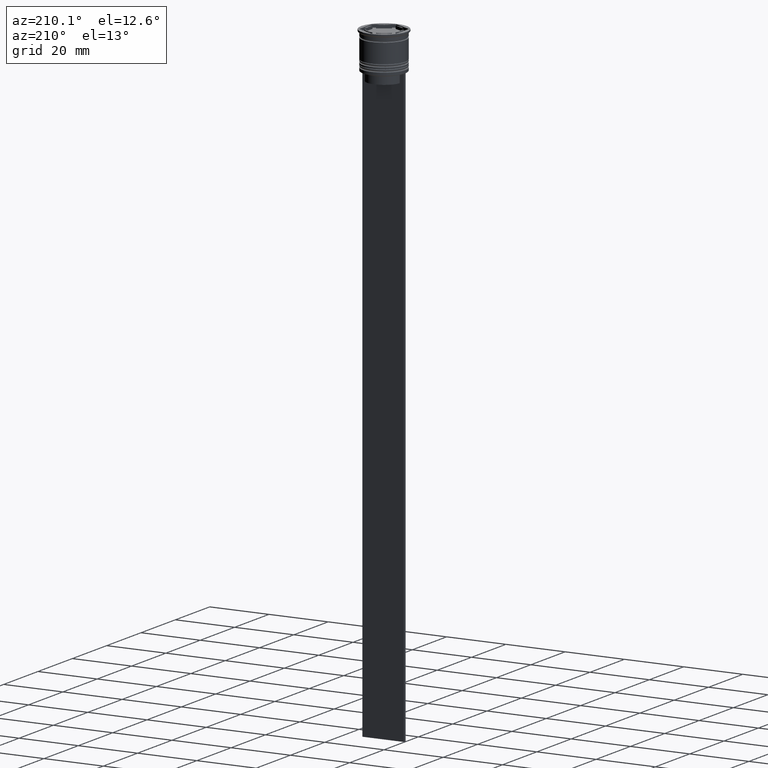
[diagram: clean part render]
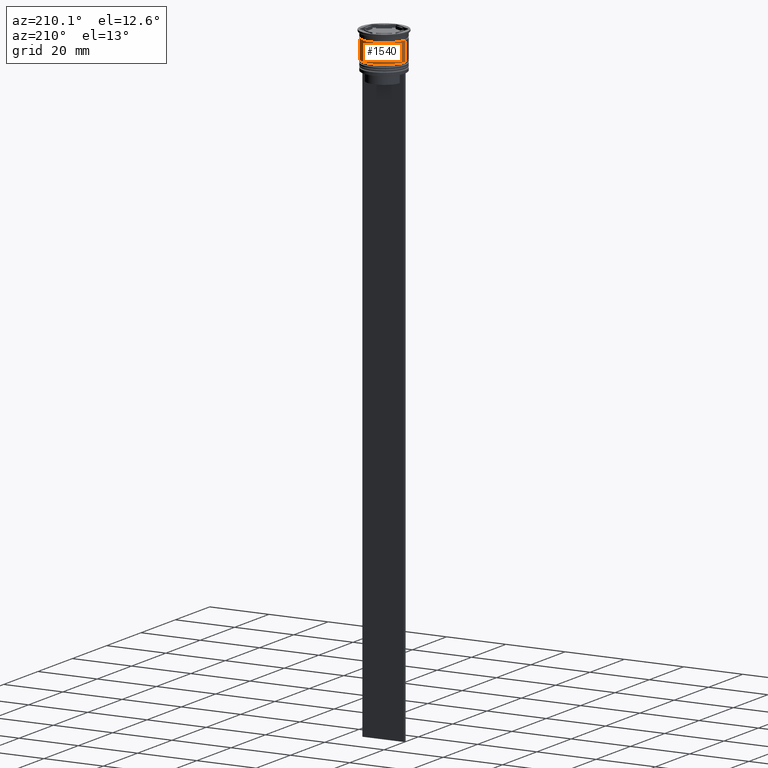
[diagram: same view with one face highlighted and labeled with its STEP entity id]
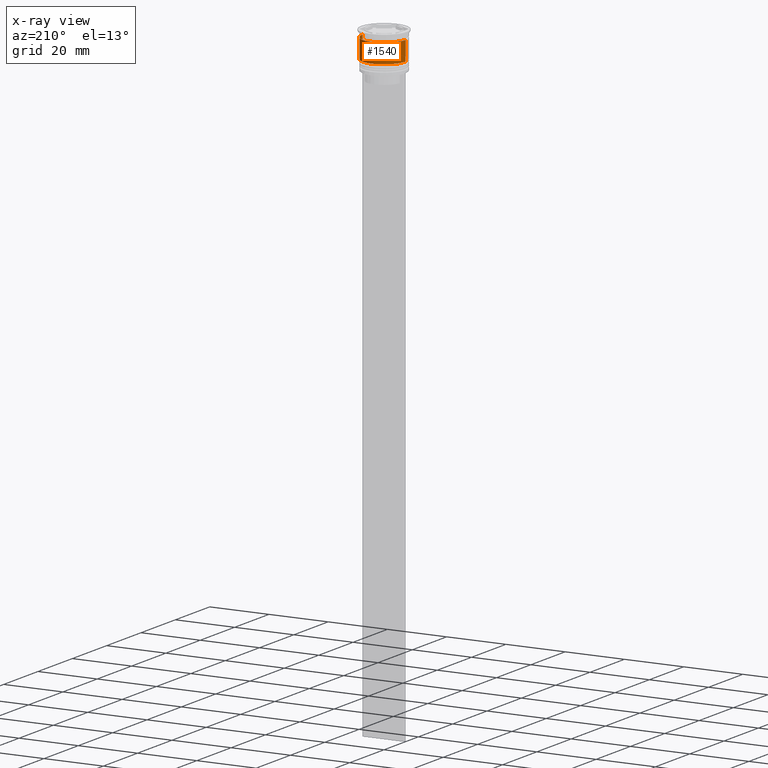
[diagram: x-ray of the same camera — body ghosted, the highlighted face saturated]
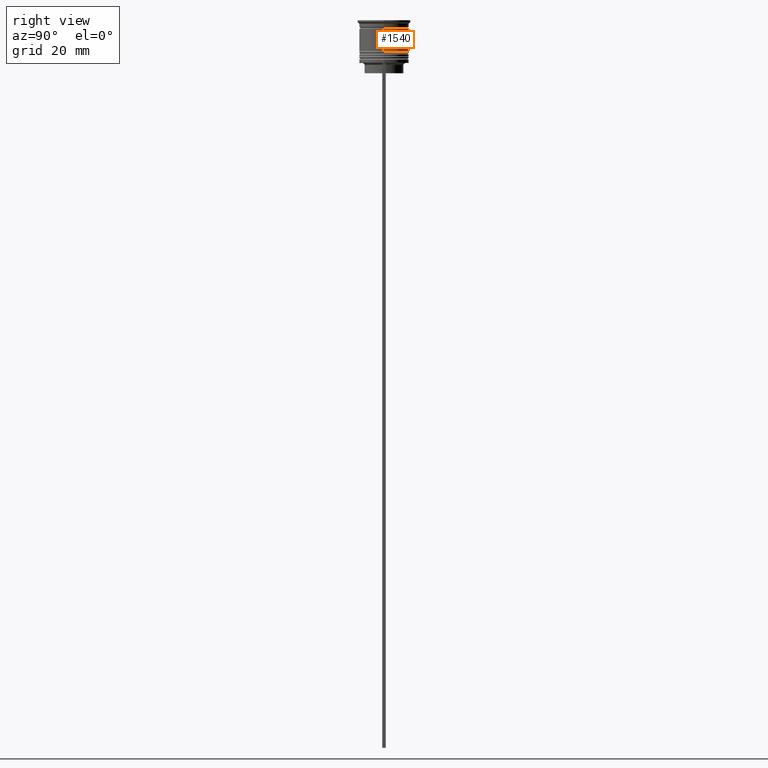
[diagram: same view with one face highlighted and labeled with its STEP entity id]
A machine part, auxiliary view. The second image highlights one B-rep face of the part: STEP entity #1540.
The next image is the same camera in x-ray: the body ghosted, the highlighted face saturated — about 0% of this face is hidden behind the body in this view.
A second angle (right view) of the same face is appended — the face is thin or edge-on in the first view.
In plain terms, the highlighted cylindrical surface (edge-blend (fillet) strip) has radius 7.25 mm, axis along (-0, -0, 1).
Its self-contained STEP definition (entity closure, byte-faithful):
#12 = VERTEX_POINT ( 'NONE', #233 ) ;
#99 = CARTESIAN_POINT ( 'NONE',  ( 0.000000000000000000, 0.000000000000000000, -2.500000000000000444 ) ) ;
#162 = AXIS2_PLACEMENT_3D ( 'NONE', #1611, #2194, #375 ) ;
#186 = ORIENTED_EDGE ( 'NONE', *, *, #2028, .T. ) ;
#205 = CARTESIAN_POINT ( 'NONE',  ( 7.249999999999999112, 0.000000000000000000, 0.000000000000000000 ) ) ;
#233 = CARTESIAN_POINT ( 'NONE',  ( 7.250000000000000888, 0.000000000000000000, -9.000000000000001776 ) ) ;
#352 = ORIENTED_EDGE ( 'NONE', *, *, #669, .F. ) ;
#375 = DIRECTION ( 'NONE',  ( 1.000000000000000000, 0.000000000000000000, 0.000000000000000000 ) ) ;
#508 = DIRECTION ( 'NONE',  ( 1.000000000000000000, 0.000000000000000000, 0.000000000000000000 ) ) ;
#521 = CARTESIAN_POINT ( 'NONE',  ( 7.249999999999997335, 0.000000000000000000, -2.500000000000000444 ) ) ;
#581 = VERTEX_POINT ( 'NONE', #1599 ) ;
#604 = VECTOR ( 'NONE', #933, 1000.000000000000000 ) ;
#614 = DIRECTION ( 'NONE',  ( -0.000000000000000000, -0.000000000000000000, 1.000000000000000000 ) ) ;
#669 = EDGE_CURVE ( 'NONE', #12, #1389, #1097, .T. ) ;
#906 = EDGE_LOOP ( 'NONE', ( #186, #1913, #1128, #352 ) ) ;
#917 = VECTOR ( 'NONE', #2121, 1000.000000000000000 ) ;
#933 = DIRECTION ( 'NONE',  ( -0.000000000000000000, -0.000000000000000000, 1.000000000000000000 ) ) ;
#1097 = LINE ( 'NONE', #205, #604 ) ;
#1128 = ORIENTED_EDGE ( 'NONE', *, *, #1758, .F. ) ;
#1202 = DIRECTION ( 'NONE',  ( 1.000000000000000000, 0.000000000000000000, 0.000000000000000000 ) ) ;
#1257 = AXIS2_PLACEMENT_3D ( 'NONE', #2064, #614, #1202 ) ;
#1375 = DIRECTION ( 'NONE',  ( -0.000000000000000000, -0.000000000000000000, 1.000000000000000000 ) ) ;
#1389 = VERTEX_POINT ( 'NONE', #521 ) ;
#1540 = ADVANCED_FACE ( 'NONE', ( #2176 ), #1989, .T. ) ;
#1594 = CIRCLE ( 'NONE', #2007, 7.249999999999997335 ) ;
#1599 = CARTESIAN_POINT ( 'NONE',  ( -7.250000000000000888, 8.878689293818312046E-16, -9.000000000000001776 ) ) ;
#1611 = CARTESIAN_POINT ( 'NONE',  ( 0.000000000000000000, 0.000000000000000000, 0.000000000000000000 ) ) ;
#1758 = EDGE_CURVE ( 'NONE', #1389, #1963, #1594, .T. ) ;
#1913 = ORIENTED_EDGE ( 'NONE', *, *, #2214, .T. ) ;
#1950 = CARTESIAN_POINT ( 'NONE',  ( -7.249999999999999112, 8.878689293818310074E-16, 0.000000000000000000 ) ) ;
#1957 = LINE ( 'NONE', #1950, #917 ) ;
#1963 = VERTEX_POINT ( 'NONE', #2244 ) ;
#1989 = CYLINDRICAL_SURFACE ( 'NONE', #162, 7.249999999999999112 ) ;
#2007 = AXIS2_PLACEMENT_3D ( 'NONE', #99, #1375, #508 ) ;
#2028 = EDGE_CURVE ( 'NONE', #12, #581, #2310, .T. ) ;
#2064 = CARTESIAN_POINT ( 'NONE',  ( 0.000000000000000000, 0.000000000000000000, -9.000000000000001776 ) ) ;
#2121 = DIRECTION ( 'NONE',  ( -0.000000000000000000, -0.000000000000000000, 1.000000000000000000 ) ) ;
#2176 = FACE_OUTER_BOUND ( 'NONE', #906, .T. ) ;
#2194 = DIRECTION ( 'NONE',  ( -0.000000000000000000, -0.000000000000000000, 1.000000000000000000 ) ) ;
#2214 = EDGE_CURVE ( 'NONE', #581, #1963, #1957, .T. ) ;
#2244 = CARTESIAN_POINT ( 'NONE',  ( -7.249999999999997335, 8.878689293818308102E-16, -2.500000000000000444 ) ) ;
#2310 = CIRCLE ( 'NONE', #1257, 7.250000000000000888 ) ;